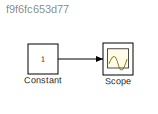
MODEL slx_f9f6fc653d77
KIND model
BLOCK [Constant] Constant
BLOCK [Scope] Scope
  DataFormat = StructureWithTime
  Floating = off
  NumInputPorts = 1
  Ports = [1]
  SampleTime = 0
  ShowLegends = off
LINE Constant:1 -> Scope:1
